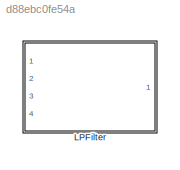
MODEL slx_d88ebc0fe54a
KIND library
CONFIG AbsTol = auto
CONFIG EnableMultiTasking = off
CONFIG FixedStep = auto
CONFIG MaxStep = auto
CONFIG MinStep = auto
CONFIG RelTol = 1e-3
CONFIG SampleTimeConstraint = Unconstrained
CONFIG Solver = VariableStepAuto
CONFIG SolverName = VariableStepAuto
CONFIG StartTime = 0.0
CONFIG StopTime = 10.0
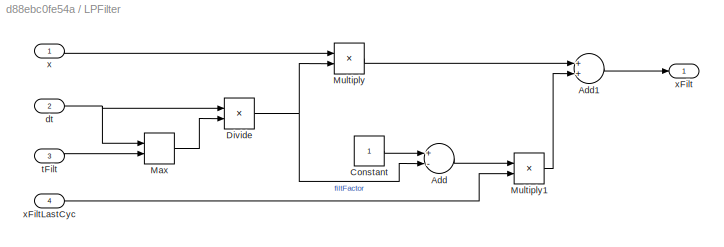
BLOCK [SubSystem] LPFilter
  Ports = [4, 1]
  RequestExecContextInheritance = off
BLOCK [Sum] LPFilter/Add
  InputSameDT = off
  Inputs = +-
  OutDataTypeStr = Inherit: Inherit via internal rule
  Ports = [2, 1]
  SaturateOnIntegerOverflow = off
BLOCK [Sum] LPFilter/Add1
  InputSameDT = off
  OutDataTypeStr = Inherit: Inherit via internal rule
  Ports = [2, 1]
  SaturateOnIntegerOverflow = off
BLOCK [Constant] LPFilter/Constant
  OutDataTypeStr = single
BLOCK [Product] LPFilter/Divide
  InputSameDT = off
  Inputs = */
  OutDataTypeStr = Inherit: Inherit via internal rule
  Ports = [2, 1]
  RndMeth = Floor
  SaturateOnIntegerOverflow = off
BLOCK [MinMax] LPFilter/Max
  Function = max
  InputSameDT = off
  Inputs = 2
  Ports = [2, 1]
  SaturateOnIntegerOverflow = off
BLOCK [Product] LPFilter/Multiply
  InputSameDT = off
  OutDataTypeStr = Inherit: Inherit via internal rule
  Ports = [2, 1]
  RndMeth = Floor
  SaturateOnIntegerOverflow = off
BLOCK [Product] LPFilter/Multiply1
  InputSameDT = off
  OutDataTypeStr = Inherit: Inherit via internal rule
  Ports = [2, 1]
  RndMeth = Floor
  SaturateOnIntegerOverflow = off
BLOCK [Inport] LPFilter/dt
  IconDisplay = Port number
  OutDataTypeStr = single
  Port = 2
BLOCK [Inport] LPFilter/tFilt
  IconDisplay = Port number
  OutDataTypeStr = single
  Port = 3
BLOCK [Inport] LPFilter/x
  IconDisplay = Port number
  OutDataTypeStr = single
BLOCK [Outport] LPFilter/xFilt
  IconDisplay = Port number
BLOCK [Inport] LPFilter/xFiltLastCyc
  IconDisplay = Port number
  OutDataTypeStr = single
  Port = 4
LINE LPFilter/Add1:1 -> LPFilter/xFilt:1
LINE LPFilter/Add:1 -> LPFilter/Multiply1:1
LINE LPFilter/Constant:1 -> LPFilter/Add:1
NET LPFilter/Divide:1 -> LPFilter/Add:2, LPFilter/Multiply:2
LINE LPFilter/Max:1 -> LPFilter/Divide:2
LINE LPFilter/Multiply1:1 -> LPFilter/Add1:2
LINE LPFilter/Multiply:1 -> LPFilter/Add1:1
NET LPFilter/dt:1 -> LPFilter/Divide:1, LPFilter/Max:1
LINE LPFilter/tFilt:1 -> LPFilter/Max:2
LINE LPFilter/x:1 -> LPFilter/Multiply:1
LINE LPFilter/xFiltLastCyc:1 -> LPFilter/Multiply1:2
note: NET lines group one-source signal fan-out (src -> all destinations, sorted); 1:1 wires keep LINE
